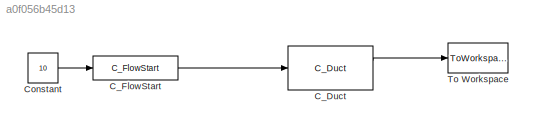
MODEL slx_a0f056b45d13
KIND model
CONFIG AbsTol = auto
CONFIG EnableMultiTasking = on
CONFIG FixedStep = auto
CONFIG MaxStep = auto
CONFIG MinStep = auto
CONFIG RelTol = 1e-3
CONFIG SampleTimeConstraint = Unconstrained
CONFIG Solver = ode45
CONFIG SolverName = ode45
CONFIG StartTime = 0.0
CONFIG StopTime = 10.0
BLOCK [Reference] C_Duct  REF=Lib_TurboC_Duct_TMATSC/C_Duct
  Ports = [1, 2]
  SourceBlock = Lib_TurboC_Duct_TMATSC/C_Duct
  SourceType = TMATS: Duct Library Block, cantera
BLOCK [Reference] C_FlowStart  REF=Lib_TurboC_FlowStart_TMATSC/C_FlowStart
  Ports = [1, 1]
  SourceBlock = Lib_TurboC_FlowStart_TMATSC/C_FlowStart
  SourceType = TMATS: Flow Start Library Block, cantera
BLOCK [Constant] Constant
  Value = 10
BLOCK [ToWorkspace] To Workspace
  MaxDataPoints = inf
  Ports = [1]
  SampleTime = -1
  SaveFormat = Timeseries
  VariableName = simout
LINE C_Duct:1 -> To Workspace:1
LINE C_FlowStart:1 -> C_Duct:1
LINE Constant:1 -> C_FlowStart:1
